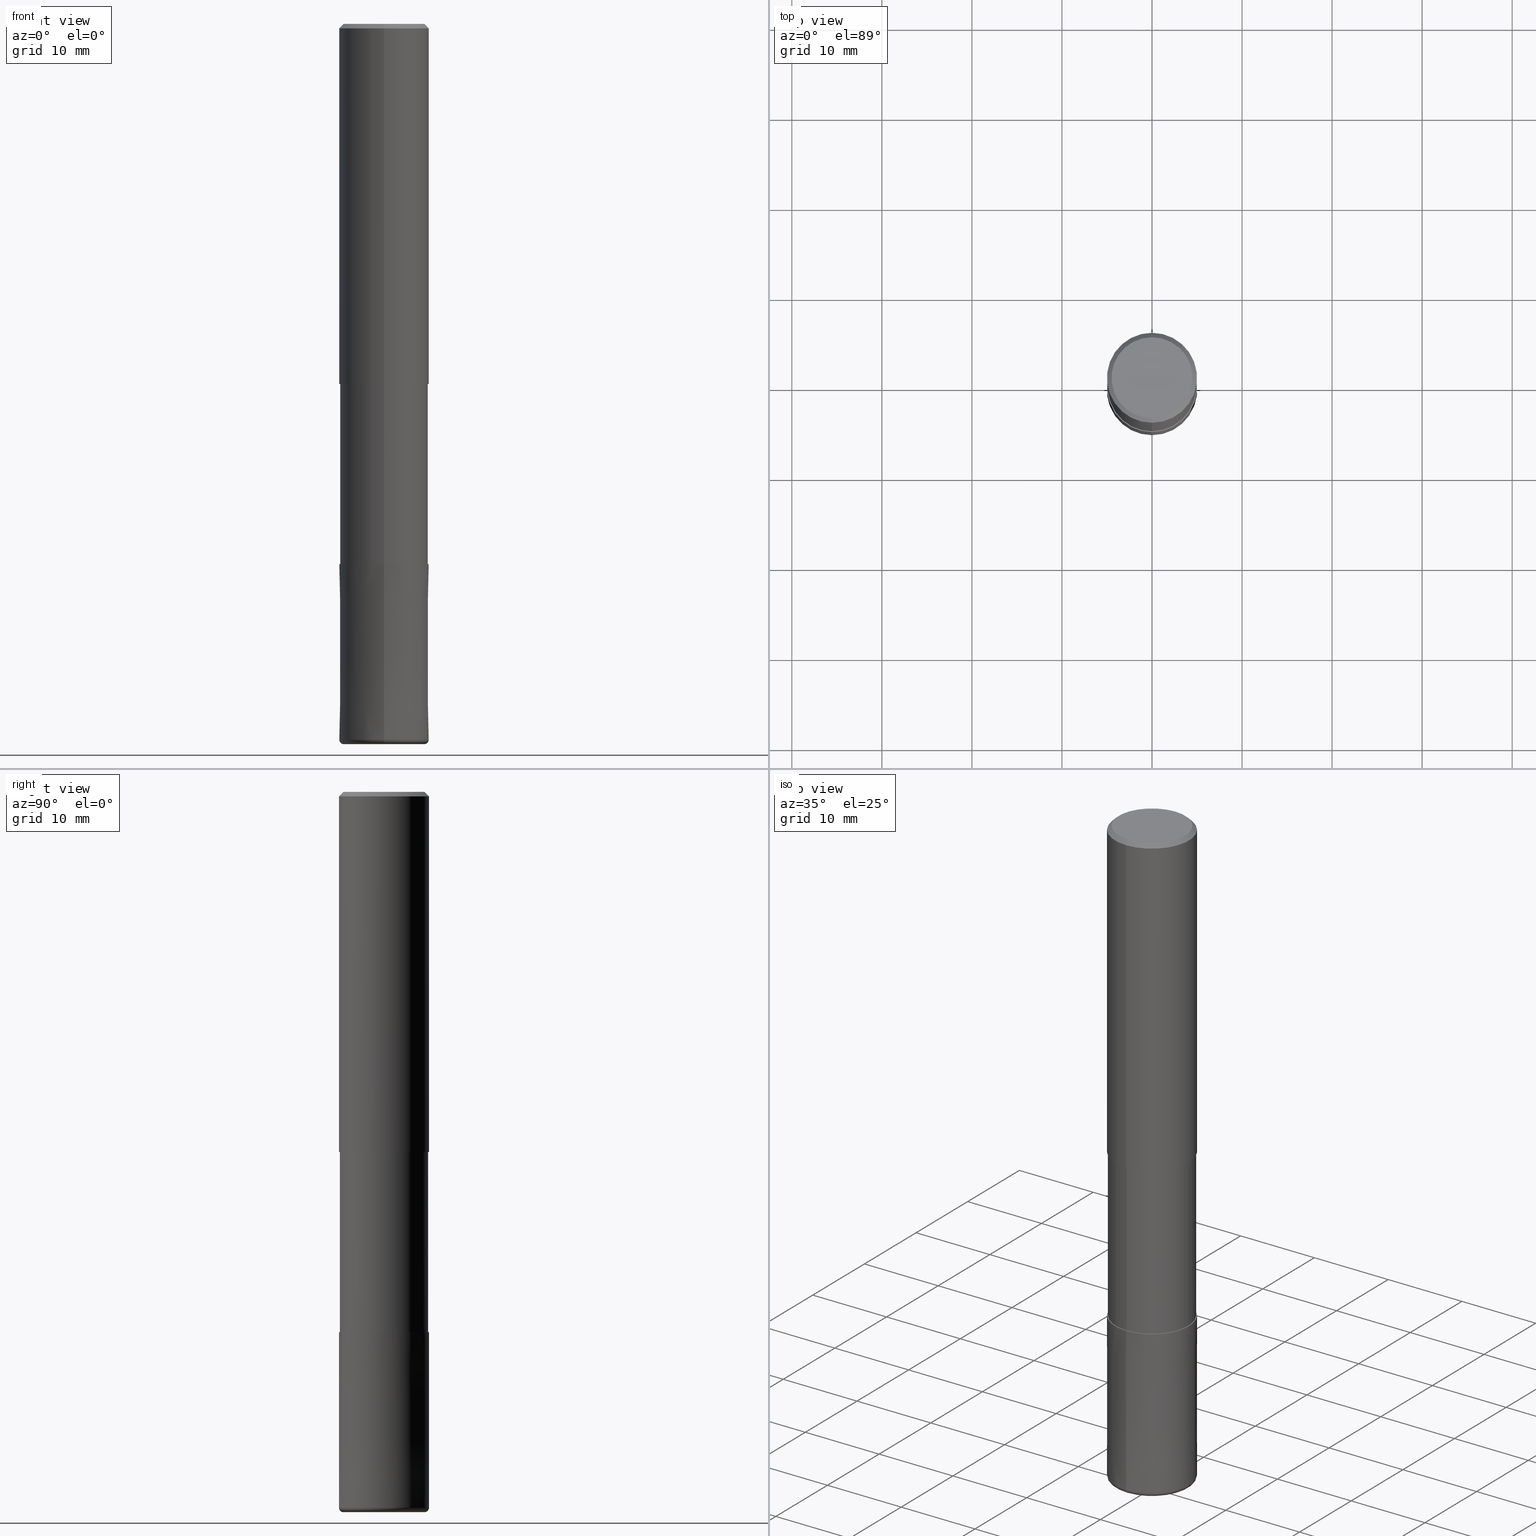
[diagram: canonical four-view strip — front | top / right | iso, engineering-drawing reading convention]
A machine part, canonical four-view strip (front | top / right | iso — engineering-drawing reading convention). The complete STEP part file that produces these views, byte-faithful:
ISO-10303-21;
HEADER;
FILE_DESCRIPTION(('no description'),'unknown implementation level');
FILE_NAME('CXLRS5100-05-40-Huellk.stp','  ',('CIMSOURCE GmbH'),('CADClick - KiM GmbH - www.kimweb.de'),'unknown preprocess','ACIS','unknown authorization');
FILE_SCHEMA(('automotive_design'));
ENDSEC;
DATA;
#1=MECHANICAL_DESIGN_GEOMETRIC_PRESENTATION_REPRESENTATION(' ',(#14,#15,#16,#17,#18,#19,#20,#21,#22,#23,#24,#25,#26,#27,#28,#29,#30,#31,#32,#33,#34,#35,#36,#37,#38,#39,#40,#41,#42,#43,#44,#45,#46,#47,#48,#49,#50,#51,#52,#53,#54,#55,#56,#57,#58,#59,#60,#61,#62,#63,#64,#65,#66,#67,#68,#69,#70,#71,#72,#73,#74,#75,#76,#77,#78,#79,#80,#81,#82,#83,#84,#85,#86,#87,#88,#89,#90,#91,#92,#93,#94,#95,#96,#97),#10);
#2=PRODUCT_DEFINITION_CONTEXT('',#98,'design');
#3=APPLICATION_PROTOCOL_DEFINITION('INTERNATIONAL STANDARD','automotive_design',1994,#98);
#4=PRODUCT_CATEGORY_RELATIONSHIP('NONE','NONE',#99,#100);
#5=SHAPE_DEFINITION_REPRESENTATION(#101,#102);
#6=PRODUCT_DEFINITION_CONTEXT('',#103,'design');
#7=APPLICATION_PROTOCOL_DEFINITION('INTERNATIONAL STANDARD','automotive_design',1994,#103);
#8=PRODUCT_CATEGORY_RELATIONSHIP('NONE','NONE',#104,#105);
#9=SHAPE_DEFINITION_REPRESENTATION(#106,#107);
#10= (GEOMETRIC_REPRESENTATION_CONTEXT(3)GLOBAL_UNCERTAINTY_ASSIGNED_CONTEXT((#110))GLOBAL_UNIT_ASSIGNED_CONTEXT((#112,#113,#114))REPRESENTATION_CONTEXT('NONE','WORKSPACE'));
#14=STYLED_ITEM('',(#116),#117);
#15=STYLED_ITEM('',(#118),#119);
#16=STYLED_ITEM('',(#120),#121);
#17=STYLED_ITEM('',(#122),#123);
#18=STYLED_ITEM('',(#124),#125);
#19=STYLED_ITEM('',(#126),#127);
#20=STYLED_ITEM('',(#128),#129);
#21=STYLED_ITEM('',(#130),#131);
#22=STYLED_ITEM('',(#132),#133);
#23=STYLED_ITEM('',(#134),#135);
#24=STYLED_ITEM('',(#136),#137);
#25=STYLED_ITEM('',(#138),#139);
#26=STYLED_ITEM('',(#140),#141);
#27=STYLED_ITEM('',(#142),#143);
#28=STYLED_ITEM('',(#144),#145);
#29=STYLED_ITEM('',(#146),#147);
#30=STYLED_ITEM('',(#148),#149);
#31=STYLED_ITEM('',(#150),#151);
#32=STYLED_ITEM('',(#152),#153);
#33=STYLED_ITEM('',(#154),#155);
#34=STYLED_ITEM('',(#156),#157);
#35=STYLED_ITEM('',(#158),#159);
#36=STYLED_ITEM('',(#160),#161);
#37=STYLED_ITEM('',(#162),#163);
#38=STYLED_ITEM('',(#164),#165);
#39=STYLED_ITEM('',(#166),#167);
#40=STYLED_ITEM('',(#168),#169);
#41=STYLED_ITEM('',(#170),#171);
#42=STYLED_ITEM('',(#172),#173);
#43=STYLED_ITEM('',(#174),#175);
#44=STYLED_ITEM('',(#176),#177);
#45=STYLED_ITEM('',(#178),#179);
#46=STYLED_ITEM('',(#180),#181);
#47=STYLED_ITEM('',(#182),#183);
#48=STYLED_ITEM('',(#184),#185);
#49=STYLED_ITEM('',(#186),#187);
#50=STYLED_ITEM('',(#188),#189);
#51=STYLED_ITEM('',(#190),#191);
#52=STYLED_ITEM('',(#192),#193);
#53=STYLED_ITEM('',(#194),#195);
#54=STYLED_ITEM('',(#196),#197);
#55=STYLED_ITEM('',(#198),#199);
#56=STYLED_ITEM('',(#200),#201);
#57=STYLED_ITEM('',(#202),#203);
#58=STYLED_ITEM('',(#204),#205);
#59=STYLED_ITEM('',(#206),#207);
#60=STYLED_ITEM('',(#208),#209);
#61=STYLED_ITEM('',(#210),#211);
#62=STYLED_ITEM('',(#212),#213);
#63=STYLED_ITEM('',(#214),#215);
#64=STYLED_ITEM('',(#216),#217);
#65=STYLED_ITEM('',(#218),#219);
#66=STYLED_ITEM('',(#220),#221);
#67=STYLED_ITEM('',(#222),#223);
#68=STYLED_ITEM('',(#224),#225);
#69=STYLED_ITEM('',(#226),#227);
#70=STYLED_ITEM('',(#228),#229);
#71=STYLED_ITEM('',(#230),#231);
#72=STYLED_ITEM('',(#232),#233);
#73=STYLED_ITEM('',(#234),#235);
#74=STYLED_ITEM('',(#236),#237);
#75=STYLED_ITEM('',(#238),#239);
#76=STYLED_ITEM('',(#240),#241);
#77=STYLED_ITEM('',(#242),#243);
#78=STYLED_ITEM('',(#244),#245);
#79=STYLED_ITEM('',(#246),#247);
#80=STYLED_ITEM('',(#248),#249);
#81=STYLED_ITEM('',(#250),#251);
#82=STYLED_ITEM('',(#252),#253);
#83=STYLED_ITEM('',(#254),#255);
#84=STYLED_ITEM('',(#256),#257);
#85=STYLED_ITEM('',(#258),#259);
#86=STYLED_ITEM('',(#260),#261);
#87=STYLED_ITEM('',(#262),#263);
#88=STYLED_ITEM('',(#264),#265);
#89=STYLED_ITEM('',(#266),#267);
#90=STYLED_ITEM('',(#268),#269);
#91=STYLED_ITEM('',(#270),#271);
#92=STYLED_ITEM('',(#272),#273);
#93=STYLED_ITEM('',(#274),#275);
#94=STYLED_ITEM('',(#276),#277);
#95=STYLED_ITEM('',(#278),#279);
#96=STYLED_ITEM('',(#280),#281);
#97=STYLED_ITEM('',(#282),#283);
#98=APPLICATION_CONTEXT(' ');
#99=PRODUCT_CATEGORY('part','NONE');
#100=PRODUCT_RELATED_PRODUCT_CATEGORY('detail',' ',(#284));
#101=PRODUCT_DEFINITION_SHAPE('NONE','NONE',#285);
#102=ADVANCED_BREP_SHAPE_REPRESENTATION('1',(#275,#286),#10);
#103=APPLICATION_CONTEXT(' ');
#104=PRODUCT_CATEGORY('part','NONE');
#105=PRODUCT_RELATED_PRODUCT_CATEGORY('detail',' ',(#287));
#106=PRODUCT_DEFINITION_SHAPE('NONE','NONE',#288);
#107=ADVANCED_BREP_SHAPE_REPRESENTATION('2',(#125,#289),#10);
#110=UNCERTAINTY_MEASURE_WITH_UNIT(LENGTH_MEASURE(1.0E-006),#112,'','');
#112= (CONVERSION_BASED_UNIT('MILLIMETRE',#292)LENGTH_UNIT()NAMED_UNIT(#295));
#113= (NAMED_UNIT(#297)PLANE_ANGLE_UNIT()SI_UNIT($,.RADIAN.));
#114= (NAMED_UNIT(#297)SOLID_ANGLE_UNIT()SI_UNIT($,.STERADIAN.));
#116=PRESENTATION_STYLE_ASSIGNMENT((#303));
#117=VERTEX_POINT('',#304);
#118=PRESENTATION_STYLE_ASSIGNMENT((#305));
#119=EDGE_CURVE('',#221,#199,#306,.T.);
#120=PRESENTATION_STYLE_ASSIGNMENT((#307));
#121=EDGE_CURVE('',#171,#179,#308,.T.);
#122=PRESENTATION_STYLE_ASSIGNMENT((#309));
#123=EDGE_CURVE('',#153,#157,#310,.T.);
#124=PRESENTATION_STYLE_ASSIGNMENT((#311));
#125=MANIFOLD_SOLID_BREP('2',#312);
#126=PRESENTATION_STYLE_ASSIGNMENT((#313));
#127=EDGE_CURVE('',#197,#147,#314,.T.);
#128=PRESENTATION_STYLE_ASSIGNMENT((#315));
#129=EDGE_CURVE('',#241,#161,#316,.T.);
#130=PRESENTATION_STYLE_ASSIGNMENT((#317));
#131=ADVANCED_FACE('',(#318),#319,.T.);
#132=PRESENTATION_STYLE_ASSIGNMENT((#320));
#133=VERTEX_POINT('',#321);
#134=PRESENTATION_STYLE_ASSIGNMENT((#322));
#135=EDGE_CURVE('',#253,#231,#323,.T.);
#136=PRESENTATION_STYLE_ASSIGNMENT((#324));
#137=VERTEX_POINT('',#325);
#138=PRESENTATION_STYLE_ASSIGNMENT((#326));
#139=VERTEX_POINT('',#327);
#140=PRESENTATION_STYLE_ASSIGNMENT((#328));
#141=EDGE_CURVE('',#161,#139,#329,.T.);
#142=PRESENTATION_STYLE_ASSIGNMENT((#330));
#143=ADVANCED_FACE('',(#331,#332),#333,.T.);
#144=PRESENTATION_STYLE_ASSIGNMENT((#334));
#145=ADVANCED_FACE('',(#335,#336),#337,.T.);
#146=PRESENTATION_STYLE_ASSIGNMENT((#338));
#147=VERTEX_POINT('',#339);
#148=PRESENTATION_STYLE_ASSIGNMENT((#340));
#149=EDGE_CURVE('',#133,#155,#341,.T.);
#150=PRESENTATION_STYLE_ASSIGNMENT((#342));
#151=EDGE_CURVE('',#139,#161,#343,.T.);
#152=PRESENTATION_STYLE_ASSIGNMENT((#344));
#153=VERTEX_POINT('',#345);
#154=PRESENTATION_STYLE_ASSIGNMENT((#346));
#155=VERTEX_POINT('',#347);
#156=PRESENTATION_STYLE_ASSIGNMENT((#348));
#157=VERTEX_POINT('',#349);
#158=PRESENTATION_STYLE_ASSIGNMENT((#350));
#159=ADVANCED_FACE('',(#351),#352,.F.);
#160=PRESENTATION_STYLE_ASSIGNMENT((#353));
#161=VERTEX_POINT('',#354);
#162=PRESENTATION_STYLE_ASSIGNMENT((#355));
#163=EDGE_CURVE('',#247,#261,#356,.T.);
#164=PRESENTATION_STYLE_ASSIGNMENT((#357));
#165=ADVANCED_FACE('',(#358),#359,.T.);
#166=PRESENTATION_STYLE_ASSIGNMENT((#360));
#167=EDGE_CURVE('',#197,#261,#361,.T.);
#168=PRESENTATION_STYLE_ASSIGNMENT((#362));
#169=ADVANCED_FACE('',(#363),#364,.T.);
#170=PRESENTATION_STYLE_ASSIGNMENT((#365));
#171=VERTEX_POINT('',#366);
#172=PRESENTATION_STYLE_ASSIGNMENT((#367));
#173=ADVANCED_FACE('',(#368,#369),#370,.T.);
#174=PRESENTATION_STYLE_ASSIGNMENT((#371));
#175=ADVANCED_FACE('',(#372),#373,.T.);
#176=PRESENTATION_STYLE_ASSIGNMENT((#374));
#177=EDGE_CURVE('',#241,#257,#375,.T.);
#178=PRESENTATION_STYLE_ASSIGNMENT((#376));
#179=VERTEX_POINT('',#377);
#180=PRESENTATION_STYLE_ASSIGNMENT((#378));
#181=VERTEX_POINT('',#379);
#182=PRESENTATION_STYLE_ASSIGNMENT((#380));
#183=VERTEX_POINT('',#381);
#184=PRESENTATION_STYLE_ASSIGNMENT((#382));
#185=EDGE_CURVE('',#155,#133,#383,.T.);
#186=PRESENTATION_STYLE_ASSIGNMENT((#384));
#187=EDGE_CURVE('',#183,#181,#385,.T.);
#188=PRESENTATION_STYLE_ASSIGNMENT((#386));
#189=EDGE_CURVE('',#137,#253,#387,.T.);
#190=PRESENTATION_STYLE_ASSIGNMENT((#388));
#191=ADVANCED_FACE('',(#389),#390,.T.);
#192=PRESENTATION_STYLE_ASSIGNMENT((#391));
#193=ADVANCED_FACE('',(#392),#393,.T.);
#194=PRESENTATION_STYLE_ASSIGNMENT((#394));
#195=EDGE_CURVE('',#231,#223,#395,.T.);
#196=PRESENTATION_STYLE_ASSIGNMENT((#396));
#197=VERTEX_POINT('',#397);
#198=PRESENTATION_STYLE_ASSIGNMENT((#398));
#199=VERTEX_POINT('',#399);
#200=PRESENTATION_STYLE_ASSIGNMENT((#400));
#201=EDGE_CURVE('',#137,#199,#401,.T.);
#202=PRESENTATION_STYLE_ASSIGNMENT((#402));
#203=ADVANCED_FACE('',(#403),#404,.F.);
#204=PRESENTATION_STYLE_ASSIGNMENT((#405));
#205=EDGE_CURVE('',#223,#137,#406,.T.);
#206=PRESENTATION_STYLE_ASSIGNMENT((#407));
#207=ADVANCED_FACE('',(#408),#409,.T.);
#208=PRESENTATION_STYLE_ASSIGNMENT((#410));
#209=ADVANCED_FACE('',(#411),#412,.T.);
#210=PRESENTATION_STYLE_ASSIGNMENT((#413));
#211=EDGE_CURVE('',#117,#273,#414,.T.);
#212=PRESENTATION_STYLE_ASSIGNMENT((#415));
#213=EDGE_CURVE('',#257,#241,#416,.T.);
#214=PRESENTATION_STYLE_ASSIGNMENT((#417));
#215=ADVANCED_FACE('',(#418),#419,.T.);
#216=PRESENTATION_STYLE_ASSIGNMENT((#420));
#217=EDGE_CURVE('',#221,#223,#421,.T.);
#218=PRESENTATION_STYLE_ASSIGNMENT((#422));
#219=EDGE_CURVE('',#273,#117,#423,.T.);
#220=PRESENTATION_STYLE_ASSIGNMENT((#424));
#221=VERTEX_POINT('',#425);
#222=PRESENTATION_STYLE_ASSIGNMENT((#426));
#223=VERTEX_POINT('',#427);
#224=PRESENTATION_STYLE_ASSIGNMENT((#428));
#225=EDGE_CURVE('',#261,#247,#429,.T.);
#226=PRESENTATION_STYLE_ASSIGNMENT((#430));
#227=EDGE_CURVE('',#153,#273,#431,.T.);
#228=PRESENTATION_STYLE_ASSIGNMENT((#432));
#229=ADVANCED_FACE('',(#433,#434),#435,.T.);
#230=PRESENTATION_STYLE_ASSIGNMENT((#436));
#231=VERTEX_POINT('',#437);
#232=PRESENTATION_STYLE_ASSIGNMENT((#438));
#233=ADVANCED_FACE('',(#439),#440,.T.);
#234=PRESENTATION_STYLE_ASSIGNMENT((#441));
#235=EDGE_CURVE('',#247,#147,#442,.T.);
#236=PRESENTATION_STYLE_ASSIGNMENT((#443));
#237=EDGE_CURVE('',#183,#155,#444,.T.);
#238=PRESENTATION_STYLE_ASSIGNMENT((#445));
#239=EDGE_CURVE('',#181,#183,#446,.T.);
#240=PRESENTATION_STYLE_ASSIGNMENT((#447));
#241=VERTEX_POINT('',#448);
#242=PRESENTATION_STYLE_ASSIGNMENT((#449));
#243=EDGE_CURVE('',#139,#257,#450,.T.);
#244=PRESENTATION_STYLE_ASSIGNMENT((#451));
#245=EDGE_CURVE('',#199,#221,#452,.T.);
#246=PRESENTATION_STYLE_ASSIGNMENT((#453));
#247=VERTEX_POINT('',#454);
#248=PRESENTATION_STYLE_ASSIGNMENT((#455));
#249=EDGE_CURVE('',#117,#157,#456,.T.);
#250=PRESENTATION_STYLE_ASSIGNMENT((#457));
#251=ADVANCED_FACE('',(#458),#459,.T.);
#252=PRESENTATION_STYLE_ASSIGNMENT((#460));
#253=VERTEX_POINT('',#461);
#254=PRESENTATION_STYLE_ASSIGNMENT((#462));
#255=EDGE_CURVE('',#179,#171,#463,.T.);
#256=PRESENTATION_STYLE_ASSIGNMENT((#464));
#257=VERTEX_POINT('',#465);
#258=PRESENTATION_STYLE_ASSIGNMENT((#466));
#259=ADVANCED_FACE('',(#467),#468,.T.);
#260=PRESENTATION_STYLE_ASSIGNMENT((#469));
#261=VERTEX_POINT('',#470);
#262=PRESENTATION_STYLE_ASSIGNMENT((#471));
#263=EDGE_CURVE('',#157,#153,#472,.T.);
#264=PRESENTATION_STYLE_ASSIGNMENT((#473));
#265=EDGE_CURVE('',#231,#253,#474,.T.);
#266=PRESENTATION_STYLE_ASSIGNMENT((#475));
#267=EDGE_CURVE('',#179,#139,#476,.T.);
#268=PRESENTATION_STYLE_ASSIGNMENT((#477));
#269=EDGE_CURVE('',#137,#223,#478,.T.);
#270=PRESENTATION_STYLE_ASSIGNMENT((#479));
#271=EDGE_CURVE('',#161,#171,#480,.T.);
#272=PRESENTATION_STYLE_ASSIGNMENT((#481));
#273=VERTEX_POINT('',#482);
#274=PRESENTATION_STYLE_ASSIGNMENT((#483));
#275=MANIFOLD_SOLID_BREP('1',#484);
#276=PRESENTATION_STYLE_ASSIGNMENT((#485));
#277=EDGE_CURVE('',#133,#181,#486,.T.);
#278=PRESENTATION_STYLE_ASSIGNMENT((#487));
#279=ADVANCED_FACE('',(#488),#489,.T.);
#280=PRESENTATION_STYLE_ASSIGNMENT((#490));
#281=ADVANCED_FACE('',(#491),#492,.T.);
#282=PRESENTATION_STYLE_ASSIGNMENT((#493));
#283=EDGE_CURVE('',#147,#197,#494,.T.);
#284=PRODUCT('1','1','PART-1-DESC',(#495));
#285=PRODUCT_DEFINITION('NONE','NONE',#496,#2);
#286=AXIS2_PLACEMENT_3D('',#497,#498,#499);
#287=PRODUCT('2','2','PART-2-DESC',(#500));
#288=PRODUCT_DEFINITION('NONE','NONE',#501,#6);
#289=AXIS2_PLACEMENT_3D('',#502,#503,#504);
#292=LENGTH_MEASURE_WITH_UNIT(LENGTH_MEASURE(1.0),#505);
#295=DIMENSIONAL_EXPONENTS(1.0,0.0,0.0,0.0,0.0,0.0,0.0);
#297=DIMENSIONAL_EXPONENTS(0.0,0.0,0.0,0.0,0.0,0.0,0.0);
#303=POINT_STYLE(' ',#506,POSITIVE_LENGTH_MEASURE(1.0E-006),#507);
#304=CARTESIAN_POINT('',(0.0,4.89995,-40.0));
#305=CURVE_STYLE('',#508,POSITIVE_LENGTH_MEASURE(1.0E-006),#509);
#306=CIRCLE('',#510,4.9999);
#307=CURVE_STYLE('',#511,POSITIVE_LENGTH_MEASURE(1.0E-006),#512);
#308=CIRCLE('',#513,5.0);
#309=CURVE_STYLE('',#514,POSITIVE_LENGTH_MEASURE(1.0E-006),#515);
#310=CIRCLE('',#516,4.89995);
#311=SURFACE_STYLE_USAGE(.BOTH.,#517);
#312=CLOSED_SHELL('',(#159,#165,#279,#229,#193,#281,#145,#203));
#313=CURVE_STYLE('',#518,POSITIVE_LENGTH_MEASURE(1.0E-006),#519);
#314=CIRCLE('',#520,2.25);
#315=CURVE_STYLE('',#521,POSITIVE_LENGTH_MEASURE(1.0E-006),#522);
#316=LINE('',#523,#524);
#317=SURFACE_STYLE_USAGE(.BOTH.,#525);
#318=FACE_OUTER_BOUND('',#526,.T.);
#319=CONICAL_SURFACE('',#527,4.75,0.785398163397448);
#320=POINT_STYLE(' ',#528,POSITIVE_LENGTH_MEASURE(1.0E-006),#529);
#321=CARTESIAN_POINT('',(0.0,2.25,-60.0));
#322=CURVE_STYLE('',#530,POSITIVE_LENGTH_MEASURE(1.0E-006),#531);
#323=CIRCLE('',#532,4.5);
#324=POINT_STYLE(' ',#533,POSITIVE_LENGTH_MEASURE(1.0E-006),#534);
#325=CARTESIAN_POINT('',(6.12303176911189E-016,-5.0,-79.5));
#326=POINT_STYLE(' ',#535,POSITIVE_LENGTH_MEASURE(1.0E-006),#536);
#327=CARTESIAN_POINT('',(6.12303176911189E-016,-5.0,-0.5));
#328=CURVE_STYLE('',#537,POSITIVE_LENGTH_MEASURE(1.0E-006),#538);
#329=CIRCLE('',#539,5.0);
#330=SURFACE_STYLE_USAGE(.BOTH.,#540);
#331=FACE_OUTER_BOUND('',#541,.T.);
#332=FACE_BOUND('',#542,.T.);
#333=PLANE('',#543);
#334=SURFACE_STYLE_USAGE(.BOTH.,#544);
#335=FACE_BOUND('',#545,.T.);
#336=FACE_OUTER_BOUND('',#546,.T.);
#337=PLANE('',#547);
#338=POINT_STYLE(' ',#548,POSITIVE_LENGTH_MEASURE(1.0E-006),#549);
#339=CARTESIAN_POINT('',(0.0,2.25,-79.8));
#340=CURVE_STYLE('',#550,POSITIVE_LENGTH_MEASURE(1.0E-006),#551);
#341=CIRCLE('',#552,2.25);
#342=CURVE_STYLE('',#553,POSITIVE_LENGTH_MEASURE(1.0E-006),#554);
#343=CIRCLE('',#555,5.0);
#344=POINT_STYLE(' ',#556,POSITIVE_LENGTH_MEASURE(1.0E-006),#557);
#345=CARTESIAN_POINT('',(6.00050990341196E-016,-4.89995,-60.0));
#346=POINT_STYLE(' ',#558,POSITIVE_LENGTH_MEASURE(1.0E-006),#559);
#347=CARTESIAN_POINT('',(2.75536429610035E-016,-2.25,-60.0));
#348=POINT_STYLE(' ',#560,POSITIVE_LENGTH_MEASURE(1.0E-006),#561);
#349=CARTESIAN_POINT('',(0.0,4.89995,-60.0));
#350=SURFACE_STYLE_USAGE(.BOTH.,#562);
#351=FACE_OUTER_BOUND('',#563,.T.);
#352=CYLINDRICAL_SURFACE('',#564,2.25);
#353=POINT_STYLE(' ',#565,POSITIVE_LENGTH_MEASURE(1.0E-006),#566);
#354=CARTESIAN_POINT('',(0.0,5.0,-0.5));
#355=CURVE_STYLE('',#567,POSITIVE_LENGTH_MEASURE(1.0E-006),#568);
#356=CIRCLE('',#569,2.25);
#357=SURFACE_STYLE_USAGE(.BOTH.,#570);
#358=FACE_OUTER_BOUND('',#571,.T.);
#359=TOROIDAL_SURFACE('',#572,4.49999999999999,0.500000000000007);
#360=CURVE_STYLE('',#573,POSITIVE_LENGTH_MEASURE(1.0E-006),#574);
#361=LINE('',#575,#576);
#362=SURFACE_STYLE_USAGE(.BOTH.,#577);
#363=FACE_OUTER_BOUND('',#578,.T.);
#364=CYLINDRICAL_SURFACE('',#579,4.89995);
#365=POINT_STYLE(' ',#580,POSITIVE_LENGTH_MEASURE(1.0E-006),#581);
#366=CARTESIAN_POINT('',(0.0,5.0,-40.0));
#367=SURFACE_STYLE_USAGE(.BOTH.,#582);
#368=FACE_BOUND('',#583,.T.);
#369=FACE_OUTER_BOUND('',#584,.T.);
#370=PLANE('',#585);
#371=SURFACE_STYLE_USAGE(.BOTH.,#586);
#372=FACE_OUTER_BOUND('',#587,.T.);
#373=CYLINDRICAL_SURFACE('',#588,2.25);
#374=CURVE_STYLE('',#589,POSITIVE_LENGTH_MEASURE(1.0E-006),#590);
#375=CIRCLE('',#591,4.5);
#376=POINT_STYLE(' ',#592,POSITIVE_LENGTH_MEASURE(1.0E-006),#593);
#377=CARTESIAN_POINT('',(6.12303176911189E-016,-5.0,-40.0));
#378=POINT_STYLE(' ',#594,POSITIVE_LENGTH_MEASURE(1.0E-006),#595);
#379=CARTESIAN_POINT('',(0.0,2.25,-80.0));
#380=POINT_STYLE(' ',#596,POSITIVE_LENGTH_MEASURE(1.0E-006),#597);
#381=CARTESIAN_POINT('',(2.75536429610035E-016,-2.25,-80.0));
#382=CURVE_STYLE('',#598,POSITIVE_LENGTH_MEASURE(1.0E-006),#599);
#383=CIRCLE('',#600,2.25);
#384=CURVE_STYLE('',#601,POSITIVE_LENGTH_MEASURE(1.0E-006),#602);
#385=CIRCLE('',#603,2.25);
#386=CURVE_STYLE('',#604,POSITIVE_LENGTH_MEASURE(1.0E-006),#605);
#387=CIRCLE('',#606,0.500000000000007);
#388=SURFACE_STYLE_USAGE(.BOTH.,#607);
#389=FACE_OUTER_BOUND('',#608,.T.);
#390=PLANE('',#609);
#391=SURFACE_STYLE_USAGE(.BOTH.,#610);
#392=FACE_OUTER_BOUND('',#611,.T.);
#393=CONICAL_SURFACE('',#612,4.99995,5.12820512814822E-006);
#394=CURVE_STYLE('',#613,POSITIVE_LENGTH_MEASURE(1.0E-006),#614);
#395=CIRCLE('',#615,0.500000000000007);
#396=POINT_STYLE(' ',#616,POSITIVE_LENGTH_MEASURE(1.0E-006),#617);
#397=CARTESIAN_POINT('',(2.75536429610035E-016,-2.25,-79.8));
#398=POINT_STYLE(' ',#618,POSITIVE_LENGTH_MEASURE(1.0E-006),#619);
#399=CARTESIAN_POINT('',(6.1229093084765E-016,-4.9999,-60.0));
#400=CURVE_STYLE('',#620,POSITIVE_LENGTH_MEASURE(1.0E-006),#621);
#401=LINE('',#622,#623);
#402=SURFACE_STYLE_USAGE(.BOTH.,#624);
#403=FACE_OUTER_BOUND('',#625,.T.);
#404=CYLINDRICAL_SURFACE('',#626,2.25);
#405=CURVE_STYLE('',#627,POSITIVE_LENGTH_MEASURE(1.0E-006),#628);
#406=CIRCLE('',#629,5.0);
#407=SURFACE_STYLE_USAGE(.BOTH.,#630);
#408=FACE_OUTER_BOUND('',#631,.T.);
#409=PLANE('',#632);
#410=SURFACE_STYLE_USAGE(.BOTH.,#633);
#411=FACE_OUTER_BOUND('',#634,.T.);
#412=CYLINDRICAL_SURFACE('',#635,2.25);
#413=CURVE_STYLE('',#636,POSITIVE_LENGTH_MEASURE(1.0E-006),#637);
#414=CIRCLE('',#638,4.89995);
#415=CURVE_STYLE('',#639,POSITIVE_LENGTH_MEASURE(1.0E-006),#640);
#416=CIRCLE('',#641,4.5);
#417=SURFACE_STYLE_USAGE(.BOTH.,#642);
#418=FACE_OUTER_BOUND('',#643,.T.);
#419=CONICAL_SURFACE('',#644,4.75,0.785398163397448);
#420=CURVE_STYLE('',#645,POSITIVE_LENGTH_MEASURE(1.0E-006),#646);
#421=LINE('',#647,#648);
#422=CURVE_STYLE('',#649,POSITIVE_LENGTH_MEASURE(1.0E-006),#650);
#423=CIRCLE('',#651,4.89995);
#424=POINT_STYLE(' ',#652,POSITIVE_LENGTH_MEASURE(1.0E-006),#653);
#425=CARTESIAN_POINT('',(0.0,4.9999,-60.0));
#426=POINT_STYLE(' ',#654,POSITIVE_LENGTH_MEASURE(1.0E-006),#655);
#427=CARTESIAN_POINT('',(0.0,5.0,-79.5));
#428=CURVE_STYLE('',#656,POSITIVE_LENGTH_MEASURE(1.0E-006),#657);
#429=CIRCLE('',#658,2.25);
#430=CURVE_STYLE('',#659,POSITIVE_LENGTH_MEASURE(1.0E-006),#660);
#431=LINE('',#661,#662);
#432=SURFACE_STYLE_USAGE(.BOTH.,#663);
#433=FACE_OUTER_BOUND('',#664,.T.);
#434=FACE_BOUND('',#665,.T.);
#435=PLANE('',#666);
#436=POINT_STYLE(' ',#667,POSITIVE_LENGTH_MEASURE(1.0E-006),#668);
#437=CARTESIAN_POINT('',(0.0,4.5,-80.0));
#438=SURFACE_STYLE_USAGE(.BOTH.,#669);
#439=FACE_OUTER_BOUND('',#670,.T.);
#440=CYLINDRICAL_SURFACE('',#671,5.0);
#441=CURVE_STYLE('',#672,POSITIVE_LENGTH_MEASURE(1.0E-006),#673);
#442=LINE('',#674,#675);
#443=CURVE_STYLE('',#676,POSITIVE_LENGTH_MEASURE(1.0E-006),#677);
#444=LINE('',#678,#679);
#445=CURVE_STYLE('',#680,POSITIVE_LENGTH_MEASURE(1.0E-006),#681);
#446=CIRCLE('',#682,2.25);
#447=POINT_STYLE(' ',#683,POSITIVE_LENGTH_MEASURE(1.0E-006),#684);
#448=CARTESIAN_POINT('',(0.0,4.5,0.0));
#449=CURVE_STYLE('',#685,POSITIVE_LENGTH_MEASURE(1.0E-006),#686);
#450=LINE('',#687,#688);
#451=CURVE_STYLE('',#689,POSITIVE_LENGTH_MEASURE(1.0E-006),#690);
#452=CIRCLE('',#691,4.9999);
#453=POINT_STYLE(' ',#692,POSITIVE_LENGTH_MEASURE(1.0E-006),#693);
#454=CARTESIAN_POINT('',(0.0,2.25,-60.0));
#455=CURVE_STYLE('',#694,POSITIVE_LENGTH_MEASURE(1.0E-006),#695);
#456=LINE('',#696,#697);
#457=SURFACE_STYLE_USAGE(.BOTH.,#698);
#458=FACE_OUTER_BOUND('',#699,.T.);
#459=CYLINDRICAL_SURFACE('',#700,5.0);
#460=POINT_STYLE(' ',#701,POSITIVE_LENGTH_MEASURE(1.0E-006),#702);
#461=CARTESIAN_POINT('',(5.5107285922007E-016,-4.5,-80.0));
#462=CURVE_STYLE('',#703,POSITIVE_LENGTH_MEASURE(1.0E-006),#704);
#463=CIRCLE('',#705,5.0);
#464=POINT_STYLE(' ',#706,POSITIVE_LENGTH_MEASURE(1.0E-006),#707);
#465=CARTESIAN_POINT('',(5.5107285922007E-016,-4.5,0.0));
#466=SURFACE_STYLE_USAGE(.BOTH.,#708);
#467=FACE_OUTER_BOUND('',#709,.T.);
#468=CYLINDRICAL_SURFACE('',#710,4.89995);
#469=POINT_STYLE(' ',#711,POSITIVE_LENGTH_MEASURE(1.0E-006),#712);
#470=CARTESIAN_POINT('',(2.75536429610035E-016,-2.25,-60.0));
#471=CURVE_STYLE('',#713,POSITIVE_LENGTH_MEASURE(1.0E-006),#714);
#472=CIRCLE('',#715,4.89995);
#473=CURVE_STYLE('',#716,POSITIVE_LENGTH_MEASURE(1.0E-006),#717);
#474=CIRCLE('',#718,4.5);
#475=CURVE_STYLE('',#719,POSITIVE_LENGTH_MEASURE(1.0E-006),#720);
#476=LINE('',#721,#722);
#477=CURVE_STYLE('',#723,POSITIVE_LENGTH_MEASURE(1.0E-006),#724);
#478=CIRCLE('',#725,5.0);
#479=CURVE_STYLE('',#726,POSITIVE_LENGTH_MEASURE(1.0E-006),#727);
#480=LINE('',#728,#729);
#481=POINT_STYLE(' ',#730,POSITIVE_LENGTH_MEASURE(1.0E-006),#731);
#482=CARTESIAN_POINT('',(6.00050990341196E-016,-4.89995,-40.0));
#483=SURFACE_STYLE_USAGE(.BOTH.,#732);
#484=CLOSED_SHELL('',(#175,#169,#233,#131,#143,#191,#215,#251,#259,#173,#209,#207));
#485=CURVE_STYLE('',#733,POSITIVE_LENGTH_MEASURE(1.0E-006),#734);
#486=LINE('',#735,#736);
#487=SURFACE_STYLE_USAGE(.BOTH.,#737);
#488=FACE_OUTER_BOUND('',#738,.T.);
#489=CONICAL_SURFACE('',#739,4.99995,5.12820512814822E-006);
#490=SURFACE_STYLE_USAGE(.BOTH.,#740);
#491=FACE_OUTER_BOUND('',#741,.T.);
#492=TOROIDAL_SURFACE('',#742,4.49999999999999,0.500000000000007);
#493=CURVE_STYLE('',#743,POSITIVE_LENGTH_MEASURE(1.0E-006),#744);
#494=CIRCLE('',#745,2.25);
#495=PRODUCT_CONTEXT('',#98,'mechanical');
#496=PRODUCT_DEFINITION_FORMATION_WITH_SPECIFIED_SOURCE(' ','NONE',#284,.NOT_KNOWN.);
#497=CARTESIAN_POINT('',(0.0,0.0,0.0));
#498=DIRECTION('',(0.0,0.0,1.0));
#499=DIRECTION('',(1.0,0.0,0.0));
#500=PRODUCT_CONTEXT('',#103,'mechanical');
#501=PRODUCT_DEFINITION_FORMATION_WITH_SPECIFIED_SOURCE(' ','NONE',#287,.NOT_KNOWN.);
#502=CARTESIAN_POINT('',(0.0,0.0,0.0));
#503=DIRECTION('',(0.0,0.0,1.0));
#504=DIRECTION('',(1.0,0.0,0.0));
#505= (NAMED_UNIT(#295)LENGTH_UNIT()SI_UNIT(.MILLI.,.METRE.));
#506=PRE_DEFINED_MARKER('');
#507=COLOUR_RGB('',0.498039215803146,0.498039215803146,0.498039215803146);
#508=DRAUGHTING_PRE_DEFINED_CURVE_FONT('continuous');
#509=COLOUR_RGB('',0.800000011920929,0.800000011920929,0.800000011920929);
#510=AXIS2_PLACEMENT_3D('',#747,#748,#749);
#511=DRAUGHTING_PRE_DEFINED_CURVE_FONT('continuous');
#512=COLOUR_RGB('',0.498039215803146,0.498039215803146,0.498039215803146);
#513=AXIS2_PLACEMENT_3D('',#750,#751,#752);
#514=DRAUGHTING_PRE_DEFINED_CURVE_FONT('continuous');
#515=COLOUR_RGB('',0.498039215803146,0.498039215803146,0.498039215803146);
#516=AXIS2_PLACEMENT_3D('',#753,#754,#755);
#517=SURFACE_SIDE_STYLE('',(#756));
#518=DRAUGHTING_PRE_DEFINED_CURVE_FONT('continuous');
#519=COLOUR_RGB('',0.498039215803146,0.498039215803146,0.498039215803146);
#520=AXIS2_PLACEMENT_3D('',#757,#758,#759);
#521=DRAUGHTING_PRE_DEFINED_CURVE_FONT('continuous');
#522=COLOUR_RGB('',0.498039215803146,0.498039215803146,0.498039215803146);
#523=CARTESIAN_POINT('',(-5.81688018065629E-016,4.75,-0.25));
#524=VECTOR('',#760,1.0);
#525=SURFACE_SIDE_STYLE('',(#761));
#526=EDGE_LOOP('',(#762,#763,#764,#765));
#527=AXIS2_PLACEMENT_3D('',#766,#767,#768);
#528=PRE_DEFINED_MARKER('');
#529=COLOUR_RGB('',0.800000011920929,0.800000011920929,0.800000011920929);
#530=DRAUGHTING_PRE_DEFINED_CURVE_FONT('continuous');
#531=COLOUR_RGB('',0.800000011920929,0.800000011920929,0.800000011920929);
#532=AXIS2_PLACEMENT_3D('',#769,#770,#771);
#533=PRE_DEFINED_MARKER('');
#534=COLOUR_RGB('',0.800000011920929,0.800000011920929,0.800000011920929);
#535=PRE_DEFINED_MARKER('');
#536=COLOUR_RGB('',0.498039215803146,0.498039215803146,0.498039215803146);
#537=DRAUGHTING_PRE_DEFINED_CURVE_FONT('continuous');
#538=COLOUR_RGB('',0.498039215803146,0.498039215803146,0.498039215803146);
#539=AXIS2_PLACEMENT_3D('',#772,#773,#774);
#540=SURFACE_SIDE_STYLE('',(#775));
#541=EDGE_LOOP('',(#776,#777));
#542=EDGE_LOOP('',(#778,#779));
#543=AXIS2_PLACEMENT_3D('',#780,#781,#782);
#544=SURFACE_SIDE_STYLE('',(#783));
#545=EDGE_LOOP('',(#784,#785));
#546=EDGE_LOOP('',(#786,#787));
#547=AXIS2_PLACEMENT_3D('',#788,#789,#790);
#548=PRE_DEFINED_MARKER('');
#549=COLOUR_RGB('',0.498039215803146,0.498039215803146,0.498039215803146);
#550=DRAUGHTING_PRE_DEFINED_CURVE_FONT('continuous');
#551=COLOUR_RGB('',0.800000011920929,0.800000011920929,0.800000011920929);
#552=AXIS2_PLACEMENT_3D('',#791,#792,#793);
#553=DRAUGHTING_PRE_DEFINED_CURVE_FONT('continuous');
#554=COLOUR_RGB('',0.498039215803146,0.498039215803146,0.498039215803146);
#555=AXIS2_PLACEMENT_3D('',#794,#795,#796);
#556=PRE_DEFINED_MARKER('');
#557=COLOUR_RGB('',0.498039215803146,0.498039215803146,0.498039215803146);
#558=PRE_DEFINED_MARKER('');
#559=COLOUR_RGB('',0.800000011920929,0.800000011920929,0.800000011920929);
#560=PRE_DEFINED_MARKER('');
#561=COLOUR_RGB('',0.498039215803146,0.498039215803146,0.498039215803146);
#562=SURFACE_SIDE_STYLE('',(#797));
#563=EDGE_LOOP('',(#798,#799,#800,#801));
#564=AXIS2_PLACEMENT_3D('',#802,#803,#804);
#565=PRE_DEFINED_MARKER('');
#566=COLOUR_RGB('',0.498039215803146,0.498039215803146,0.498039215803146);
#567=DRAUGHTING_PRE_DEFINED_CURVE_FONT('continuous');
#568=COLOUR_RGB('',0.498039215803146,0.498039215803146,0.498039215803146);
#569=AXIS2_PLACEMENT_3D('',#805,#806,#807);
#570=SURFACE_SIDE_STYLE('',(#808));
#571=EDGE_LOOP('',(#809,#810,#811,#812));
#572=AXIS2_PLACEMENT_3D('',#813,#814,#815);
#573=DRAUGHTING_PRE_DEFINED_CURVE_FONT('continuous');
#574=COLOUR_RGB('',0.498039215803146,0.498039215803146,0.498039215803146);
#575=CARTESIAN_POINT('',(2.75536429610035E-016,-2.25,-69.9));
#576=VECTOR('',#816,1.0);
#577=SURFACE_SIDE_STYLE('',(#817));
#578=EDGE_LOOP('',(#818,#819,#820,#821));
#579=AXIS2_PLACEMENT_3D('',#822,#823,#824);
#580=PRE_DEFINED_MARKER('');
#581=COLOUR_RGB('',0.498039215803146,0.498039215803146,0.498039215803146);
#582=SURFACE_SIDE_STYLE('',(#825));
#583=EDGE_LOOP('',(#826,#827));
#584=EDGE_LOOP('',(#828,#829));
#585=AXIS2_PLACEMENT_3D('',#830,#831,#832);
#586=SURFACE_SIDE_STYLE('',(#833));
#587=EDGE_LOOP('',(#834,#835,#836,#837));
#588=AXIS2_PLACEMENT_3D('',#838,#839,#840);
#589=DRAUGHTING_PRE_DEFINED_CURVE_FONT('continuous');
#590=COLOUR_RGB('',0.498039215803146,0.498039215803146,0.498039215803146);
#591=AXIS2_PLACEMENT_3D('',#841,#842,#843);
#592=PRE_DEFINED_MARKER('');
#593=COLOUR_RGB('',0.498039215803146,0.498039215803146,0.498039215803146);
#594=PRE_DEFINED_MARKER('');
#595=COLOUR_RGB('',0.800000011920929,0.800000011920929,0.800000011920929);
#596=PRE_DEFINED_MARKER('');
#597=COLOUR_RGB('',0.800000011920929,0.800000011920929,0.800000011920929);
#598=DRAUGHTING_PRE_DEFINED_CURVE_FONT('continuous');
#599=COLOUR_RGB('',0.800000011920929,0.800000011920929,0.800000011920929);
#600=AXIS2_PLACEMENT_3D('',#844,#845,#846);
#601=DRAUGHTING_PRE_DEFINED_CURVE_FONT('continuous');
#602=COLOUR_RGB('',0.800000011920929,0.800000011920929,0.800000011920929);
#603=AXIS2_PLACEMENT_3D('',#847,#848,#849);
#604=DRAUGHTING_PRE_DEFINED_CURVE_FONT('continuous');
#605=COLOUR_RGB('',0.800000011920929,0.800000011920929,0.800000011920929);
#606=AXIS2_PLACEMENT_3D('',#850,#851,#852);
#607=SURFACE_SIDE_STYLE('',(#853));
#608=EDGE_LOOP('',(#854,#855));
#609=AXIS2_PLACEMENT_3D('',#856,#857,#858);
#610=SURFACE_SIDE_STYLE('',(#859));
#611=EDGE_LOOP('',(#860,#861,#862,#863));
#612=AXIS2_PLACEMENT_3D('',#864,#865,#866);
#613=DRAUGHTING_PRE_DEFINED_CURVE_FONT('continuous');
#614=COLOUR_RGB('',0.800000011920929,0.800000011920929,0.800000011920929);
#615=AXIS2_PLACEMENT_3D('',#867,#868,#869);
#616=PRE_DEFINED_MARKER('');
#617=COLOUR_RGB('',0.498039215803146,0.498039215803146,0.498039215803146);
#618=PRE_DEFINED_MARKER('');
#619=COLOUR_RGB('',0.800000011920929,0.800000011920929,0.800000011920929);
#620=DRAUGHTING_PRE_DEFINED_CURVE_FONT('continuous');
#621=COLOUR_RGB('',0.800000011920929,0.800000011920929,0.800000011920929);
#622=CARTESIAN_POINT('',(6.12297053879419E-016,-4.99995,-69.75));
#623=VECTOR('',#870,1.0);
#624=SURFACE_SIDE_STYLE('',(#871));
#625=EDGE_LOOP('',(#872,#873,#874,#875));
#626=AXIS2_PLACEMENT_3D('',#876,#877,#878);
#627=DRAUGHTING_PRE_DEFINED_CURVE_FONT('continuous');
#628=COLOUR_RGB('',0.800000011920929,0.800000011920929,0.800000011920929);
#629=AXIS2_PLACEMENT_3D('',#879,#880,#881);
#630=SURFACE_SIDE_STYLE('',(#882));
#631=EDGE_LOOP('',(#883,#884));
#632=AXIS2_PLACEMENT_3D('',#885,#886,#887);
#633=SURFACE_SIDE_STYLE('',(#888));
#634=EDGE_LOOP('',(#889,#890,#891,#892));
#635=AXIS2_PLACEMENT_3D('',#893,#894,#895);
#636=DRAUGHTING_PRE_DEFINED_CURVE_FONT('continuous');
#637=COLOUR_RGB('',0.498039215803146,0.498039215803146,0.498039215803146);
#638=AXIS2_PLACEMENT_3D('',#896,#897,#898);
#639=DRAUGHTING_PRE_DEFINED_CURVE_FONT('continuous');
#640=COLOUR_RGB('',0.498039215803146,0.498039215803146,0.498039215803146);
#641=AXIS2_PLACEMENT_3D('',#899,#900,#901);
#642=SURFACE_SIDE_STYLE('',(#902));
#643=EDGE_LOOP('',(#903,#904,#905,#906));
#644=AXIS2_PLACEMENT_3D('',#907,#908,#909);
#645=DRAUGHTING_PRE_DEFINED_CURVE_FONT('continuous');
#646=COLOUR_RGB('',0.800000011920929,0.800000011920929,0.800000011920929);
#647=CARTESIAN_POINT('',(-6.12297053879419E-016,4.99995,-69.75));
#648=VECTOR('',#910,1.0);
#649=DRAUGHTING_PRE_DEFINED_CURVE_FONT('continuous');
#650=COLOUR_RGB('',0.498039215803146,0.498039215803146,0.498039215803146);
#651=AXIS2_PLACEMENT_3D('',#911,#912,#913);
#652=PRE_DEFINED_MARKER('');
#653=COLOUR_RGB('',0.800000011920929,0.800000011920929,0.800000011920929);
#654=PRE_DEFINED_MARKER('');
#655=COLOUR_RGB('',0.800000011920929,0.800000011920929,0.800000011920929);
#656=DRAUGHTING_PRE_DEFINED_CURVE_FONT('continuous');
#657=COLOUR_RGB('',0.498039215803146,0.498039215803146,0.498039215803146);
#658=AXIS2_PLACEMENT_3D('',#914,#915,#916);
#659=DRAUGHTING_PRE_DEFINED_CURVE_FONT('continuous');
#660=COLOUR_RGB('',0.498039215803146,0.498039215803146,0.498039215803146);
#661=CARTESIAN_POINT('',(6.00050990341196E-016,-4.89995,-50.0));
#662=VECTOR('',#917,1.0);
#663=SURFACE_SIDE_STYLE('',(#918));
#664=EDGE_LOOP('',(#919,#920));
#665=EDGE_LOOP('',(#921,#922));
#666=AXIS2_PLACEMENT_3D('',#923,#924,#925);
#667=PRE_DEFINED_MARKER('');
#668=COLOUR_RGB('',0.800000011920929,0.800000011920929,0.800000011920929);
#669=SURFACE_SIDE_STYLE('',(#926));
#670=EDGE_LOOP('',(#927,#928,#929,#930));
#671=AXIS2_PLACEMENT_3D('',#931,#932,#933);
#672=DRAUGHTING_PRE_DEFINED_CURVE_FONT('continuous');
#673=COLOUR_RGB('',0.498039215803146,0.498039215803146,0.498039215803146);
#674=CARTESIAN_POINT('',(-2.75536429610035E-016,2.25,-69.9));
#675=VECTOR('',#934,1.0);
#676=DRAUGHTING_PRE_DEFINED_CURVE_FONT('continuous');
#677=COLOUR_RGB('',0.800000011920929,0.800000011920929,0.800000011920929);
#678=CARTESIAN_POINT('',(2.75536429610035E-016,-2.25,-70.0));
#679=VECTOR('',#935,1.0);
#680=DRAUGHTING_PRE_DEFINED_CURVE_FONT('continuous');
#681=COLOUR_RGB('',0.800000011920929,0.800000011920929,0.800000011920929);
#682=AXIS2_PLACEMENT_3D('',#936,#937,#938);
#683=PRE_DEFINED_MARKER('');
#684=COLOUR_RGB('',0.498039215803146,0.498039215803146,0.498039215803146);
#685=DRAUGHTING_PRE_DEFINED_CURVE_FONT('continuous');
#686=COLOUR_RGB('',0.498039215803146,0.498039215803146,0.498039215803146);
#687=CARTESIAN_POINT('',(5.81688018065629E-016,-4.75,-0.25));
#688=VECTOR('',#939,1.0);
#689=DRAUGHTING_PRE_DEFINED_CURVE_FONT('continuous');
#690=COLOUR_RGB('',0.800000011920929,0.800000011920929,0.800000011920929);
#691=AXIS2_PLACEMENT_3D('',#940,#941,#942);
#692=PRE_DEFINED_MARKER('');
#693=COLOUR_RGB('',0.498039215803146,0.498039215803146,0.498039215803146);
#694=DRAUGHTING_PRE_DEFINED_CURVE_FONT('continuous');
#695=COLOUR_RGB('',0.498039215803146,0.498039215803146,0.498039215803146);
#696=CARTESIAN_POINT('',(-6.00050990341196E-016,4.89995,-50.0));
#697=VECTOR('',#943,1.0);
#698=SURFACE_SIDE_STYLE('',(#944));
#699=EDGE_LOOP('',(#945,#946,#947,#948));
#700=AXIS2_PLACEMENT_3D('',#949,#950,#951);
#701=PRE_DEFINED_MARKER('');
#702=COLOUR_RGB('',0.800000011920929,0.800000011920929,0.800000011920929);
#703=DRAUGHTING_PRE_DEFINED_CURVE_FONT('continuous');
#704=COLOUR_RGB('',0.498039215803146,0.498039215803146,0.498039215803146);
#705=AXIS2_PLACEMENT_3D('',#952,#953,#954);
#706=PRE_DEFINED_MARKER('');
#707=COLOUR_RGB('',0.498039215803146,0.498039215803146,0.498039215803146);
#708=SURFACE_SIDE_STYLE('',(#955));
#709=EDGE_LOOP('',(#956,#957,#958,#959));
#710=AXIS2_PLACEMENT_3D('',#960,#961,#962);
#711=PRE_DEFINED_MARKER('');
#712=COLOUR_RGB('',0.498039215803146,0.498039215803146,0.498039215803146);
#713=DRAUGHTING_PRE_DEFINED_CURVE_FONT('continuous');
#714=COLOUR_RGB('',0.498039215803146,0.498039215803146,0.498039215803146);
#715=AXIS2_PLACEMENT_3D('',#963,#964,#965);
#716=DRAUGHTING_PRE_DEFINED_CURVE_FONT('continuous');
#717=COLOUR_RGB('',0.800000011920929,0.800000011920929,0.800000011920929);
#718=AXIS2_PLACEMENT_3D('',#966,#967,#968);
#719=DRAUGHTING_PRE_DEFINED_CURVE_FONT('continuous');
#720=COLOUR_RGB('',0.498039215803146,0.498039215803146,0.498039215803146);
#721=CARTESIAN_POINT('',(6.12303176911189E-016,-5.0,-20.25));
#722=VECTOR('',#969,1.0);
#723=DRAUGHTING_PRE_DEFINED_CURVE_FONT('continuous');
#724=COLOUR_RGB('',0.800000011920929,0.800000011920929,0.800000011920929);
#725=AXIS2_PLACEMENT_3D('',#970,#971,#972);
#726=DRAUGHTING_PRE_DEFINED_CURVE_FONT('continuous');
#727=COLOUR_RGB('',0.498039215803146,0.498039215803146,0.498039215803146);
#728=CARTESIAN_POINT('',(-6.12303176911189E-016,5.0,-20.25));
#729=VECTOR('',#973,1.0);
#730=PRE_DEFINED_MARKER('');
#731=COLOUR_RGB('',0.498039215803146,0.498039215803146,0.498039215803146);
#732=SURFACE_SIDE_STYLE('',(#974));
#733=DRAUGHTING_PRE_DEFINED_CURVE_FONT('continuous');
#734=COLOUR_RGB('',0.800000011920929,0.800000011920929,0.800000011920929);
#735=CARTESIAN_POINT('',(-2.75536429610035E-016,2.25,-70.0));
#736=VECTOR('',#975,1.0);
#737=SURFACE_SIDE_STYLE('',(#976));
#738=EDGE_LOOP('',(#977,#978,#979,#980));
#739=AXIS2_PLACEMENT_3D('',#981,#982,#983);
#740=SURFACE_SIDE_STYLE('',(#984));
#741=EDGE_LOOP('',(#985,#986,#987,#988));
#742=AXIS2_PLACEMENT_3D('',#989,#990,#991);
#743=DRAUGHTING_PRE_DEFINED_CURVE_FONT('continuous');
#744=COLOUR_RGB('',0.498039215803146,0.498039215803146,0.498039215803146);
#745=AXIS2_PLACEMENT_3D('',#992,#993,#994);
#747=CARTESIAN_POINT('',(0.0,0.0,-60.0));
#748=DIRECTION('',(0.0,0.0,-1.0));
#749=DIRECTION('',(0.0,1.0,0.0));
#750=CARTESIAN_POINT('',(0.0,0.0,-40.0));
#751=DIRECTION('',(0.0,0.0,-1.0));
#752=DIRECTION('',(0.0,1.0,0.0));
#753=CARTESIAN_POINT('',(0.0,0.0,-60.0));
#754=DIRECTION('',(0.0,0.0,-1.0));
#755=DIRECTION('',(0.0,1.0,0.0));
#756=SURFACE_STYLE_FILL_AREA(#995);
#757=CARTESIAN_POINT('',(0.0,0.0,-79.8));
#758=DIRECTION('',(0.0,0.0,-1.0));
#759=DIRECTION('',(0.0,1.0,0.0));
#760=DIRECTION('',(-8.65927457071936E-017,0.707106781186548,-0.707106781186548));
#761=SURFACE_STYLE_FILL_AREA(#996);
#762=ORIENTED_EDGE('',*,*,#129,.F.);
#763=ORIENTED_EDGE('',*,*,#177,.T.);
#764=ORIENTED_EDGE('',*,*,#243,.F.);
#765=ORIENTED_EDGE('',*,*,#141,.F.);
#766=CARTESIAN_POINT('',(0.0,0.0,-0.25));
#767=DIRECTION('',(0.0,-0.0,-1.0));
#768=DIRECTION('',(0.0,1.0,0.0));
#769=CARTESIAN_POINT('',(0.0,0.0,-80.0));
#770=DIRECTION('',(0.0,0.0,-1.0));
#771=DIRECTION('',(0.0,1.0,0.0));
#772=CARTESIAN_POINT('',(0.0,0.0,-0.5));
#773=DIRECTION('',(0.0,0.0,-1.0));
#774=DIRECTION('',(0.0,1.0,0.0));
#775=SURFACE_STYLE_FILL_AREA(#997);
#776=ORIENTED_EDGE('',*,*,#121,.T.);
#777=ORIENTED_EDGE('',*,*,#255,.T.);
#778=ORIENTED_EDGE('',*,*,#211,.F.);
#779=ORIENTED_EDGE('',*,*,#219,.F.);
#780=CARTESIAN_POINT('',(0.0,2.5,-40.0));
#781=DIRECTION('',(0.0,0.0,-1.0));
#782=DIRECTION('',(0.0,1.0,0.0));
#783=SURFACE_STYLE_FILL_AREA(#998);
#784=ORIENTED_EDGE('',*,*,#239,.F.);
#785=ORIENTED_EDGE('',*,*,#187,.F.);
#786=ORIENTED_EDGE('',*,*,#265,.T.);
#787=ORIENTED_EDGE('',*,*,#135,.T.);
#788=CARTESIAN_POINT('',(0.0,3.375,-80.0));
#789=DIRECTION('',(0.0,0.0,-1.0));
#790=DIRECTION('',(0.0,1.0,0.0));
#791=CARTESIAN_POINT('',(0.0,0.0,-60.0));
#792=DIRECTION('',(0.0,0.0,-1.0));
#793=DIRECTION('',(0.0,1.0,0.0));
#794=CARTESIAN_POINT('',(0.0,0.0,-0.5));
#795=DIRECTION('',(0.0,0.0,-1.0));
#796=DIRECTION('',(0.0,1.0,0.0));
#797=SURFACE_STYLE_FILL_AREA(#999);
#798=ORIENTED_EDGE('',*,*,#277,.F.);
#799=ORIENTED_EDGE('',*,*,#185,.F.);
#800=ORIENTED_EDGE('',*,*,#237,.F.);
#801=ORIENTED_EDGE('',*,*,#187,.T.);
#802=CARTESIAN_POINT('',(0.0,0.0,-70.0));
#803=DIRECTION('',(-0.0,-0.0,1.0));
#804=DIRECTION('',(0.0,1.0,0.0));
#805=CARTESIAN_POINT('',(0.0,0.0,-60.0));
#806=DIRECTION('',(0.0,0.0,-1.0));
#807=DIRECTION('',(0.0,1.0,0.0));
#808=SURFACE_STYLE_FILL_AREA(#1000);
#809=ORIENTED_EDGE('',*,*,#189,.F.);
#810=ORIENTED_EDGE('',*,*,#269,.T.);
#811=ORIENTED_EDGE('',*,*,#195,.F.);
#812=ORIENTED_EDGE('',*,*,#135,.F.);
#813=CARTESIAN_POINT('',(0.0,0.0,-79.5));
#814=DIRECTION('',(0.0,0.0,-1.0));
#815=DIRECTION('',(0.0,-1.0,0.0));
#816=DIRECTION('',(-0.0,-0.0,1.0));
#817=SURFACE_STYLE_FILL_AREA(#1001);
#818=ORIENTED_EDGE('',*,*,#249,.F.);
#819=ORIENTED_EDGE('',*,*,#211,.T.);
#820=ORIENTED_EDGE('',*,*,#227,.F.);
#821=ORIENTED_EDGE('',*,*,#263,.F.);
#822=CARTESIAN_POINT('',(0.0,0.0,-50.0));
#823=DIRECTION('',(-0.0,-0.0,1.0));
#824=DIRECTION('',(0.0,1.0,0.0));
#825=SURFACE_STYLE_FILL_AREA(#1002);
#826=ORIENTED_EDGE('',*,*,#163,.F.);
#827=ORIENTED_EDGE('',*,*,#225,.F.);
#828=ORIENTED_EDGE('',*,*,#263,.T.);
#829=ORIENTED_EDGE('',*,*,#123,.T.);
#830=CARTESIAN_POINT('',(0.0,3.574975,-60.0));
#831=DIRECTION('',(0.0,0.0,-1.0));
#832=DIRECTION('',(0.0,1.0,0.0));
#833=SURFACE_STYLE_FILL_AREA(#1003);
#834=ORIENTED_EDGE('',*,*,#235,.F.);
#835=ORIENTED_EDGE('',*,*,#163,.T.);
#836=ORIENTED_EDGE('',*,*,#167,.F.);
#837=ORIENTED_EDGE('',*,*,#283,.F.);
#838=CARTESIAN_POINT('',(0.0,0.0,-69.9));
#839=DIRECTION('',(-0.0,-0.0,1.0));
#840=DIRECTION('',(0.0,1.0,0.0));
#841=CARTESIAN_POINT('',(0.0,0.0,0.0));
#842=DIRECTION('',(0.0,0.0,-1.0));
#843=DIRECTION('',(0.0,1.0,0.0));
#844=CARTESIAN_POINT('',(0.0,0.0,-60.0));
#845=DIRECTION('',(0.0,0.0,-1.0));
#846=DIRECTION('',(0.0,1.0,0.0));
#847=CARTESIAN_POINT('',(0.0,0.0,-80.0));
#848=DIRECTION('',(0.0,0.0,-1.0));
#849=DIRECTION('',(0.0,1.0,0.0));
#850=CARTESIAN_POINT('',(5.51072859220069E-016,-4.49999999999999,-79.5));
#851=DIRECTION('',(1.0,1.22460635382238E-016,0.0));
#852=DIRECTION('',(1.22460635382238E-016,-1.0,-0.0));
#853=SURFACE_STYLE_FILL_AREA(#1004);
#854=ORIENTED_EDGE('',*,*,#177,.F.);
#855=ORIENTED_EDGE('',*,*,#213,.F.);
#856=CARTESIAN_POINT('',(0.0,2.25,0.0));
#857=DIRECTION('',(-0.0,0.0,1.0));
#858=DIRECTION('',(0.0,-1.0,0.0));
#859=SURFACE_STYLE_FILL_AREA(#1005);
#860=ORIENTED_EDGE('',*,*,#217,.T.);
#861=ORIENTED_EDGE('',*,*,#269,.F.);
#862=ORIENTED_EDGE('',*,*,#201,.T.);
#863=ORIENTED_EDGE('',*,*,#245,.T.);
#864=CARTESIAN_POINT('',(0.0,0.0,-69.75));
#865=DIRECTION('',(0.0,-0.0,-1.0));
#866=DIRECTION('',(0.0,1.0,0.0));
#867=CARTESIAN_POINT('',(-5.51072859220069E-016,4.49999999999999,-79.5));
#868=DIRECTION('',(1.0,1.22460635382238E-016,0.0));
#869=DIRECTION('',(-1.22460635382238E-016,1.0,0.0));
#870=DIRECTION('',(-6.28003258360728E-022,5.12820512812574E-006,0.999999999986851));
#871=SURFACE_STYLE_FILL_AREA(#1006);
#872=ORIENTED_EDGE('',*,*,#277,.T.);
#873=ORIENTED_EDGE('',*,*,#239,.T.);
#874=ORIENTED_EDGE('',*,*,#237,.T.);
#875=ORIENTED_EDGE('',*,*,#149,.F.);
#876=CARTESIAN_POINT('',(0.0,0.0,-70.0));
#877=DIRECTION('',(-0.0,-0.0,1.0));
#878=DIRECTION('',(0.0,1.0,0.0));
#879=CARTESIAN_POINT('',(0.0,0.0,-79.5));
#880=DIRECTION('',(0.0,0.0,-1.0));
#881=DIRECTION('',(0.0,1.0,0.0));
#882=SURFACE_STYLE_FILL_AREA(#1007);
#883=ORIENTED_EDGE('',*,*,#283,.T.);
#884=ORIENTED_EDGE('',*,*,#127,.T.);
#885=CARTESIAN_POINT('',(0.0,1.125,-79.8));
#886=DIRECTION('',(0.0,0.0,-1.0));
#887=DIRECTION('',(0.0,1.0,0.0));
#888=SURFACE_STYLE_FILL_AREA(#1008);
#889=ORIENTED_EDGE('',*,*,#235,.T.);
#890=ORIENTED_EDGE('',*,*,#127,.F.);
#891=ORIENTED_EDGE('',*,*,#167,.T.);
#892=ORIENTED_EDGE('',*,*,#225,.T.);
#893=CARTESIAN_POINT('',(0.0,0.0,-69.9));
#894=DIRECTION('',(-0.0,-0.0,1.0));
#895=DIRECTION('',(0.0,1.0,0.0));
#896=CARTESIAN_POINT('',(0.0,0.0,-40.0));
#897=DIRECTION('',(0.0,0.0,-1.0));
#898=DIRECTION('',(0.0,1.0,0.0));
#899=CARTESIAN_POINT('',(0.0,0.0,0.0));
#900=DIRECTION('',(0.0,0.0,-1.0));
#901=DIRECTION('',(0.0,1.0,0.0));
#902=SURFACE_STYLE_FILL_AREA(#1009);
#903=ORIENTED_EDGE('',*,*,#129,.T.);
#904=ORIENTED_EDGE('',*,*,#151,.F.);
#905=ORIENTED_EDGE('',*,*,#243,.T.);
#906=ORIENTED_EDGE('',*,*,#213,.T.);
#907=CARTESIAN_POINT('',(0.0,0.0,-0.25));
#908=DIRECTION('',(0.0,-0.0,-1.0));
#909=DIRECTION('',(0.0,1.0,0.0));
#910=DIRECTION('',(-6.28003258360729E-022,5.12820512812574E-006,-0.999999999986851));
#911=CARTESIAN_POINT('',(0.0,0.0,-40.0));
#912=DIRECTION('',(0.0,0.0,-1.0));
#913=DIRECTION('',(0.0,1.0,0.0));
#914=CARTESIAN_POINT('',(0.0,0.0,-60.0));
#915=DIRECTION('',(0.0,0.0,-1.0));
#916=DIRECTION('',(0.0,1.0,0.0));
#917=DIRECTION('',(-0.0,-0.0,1.0));
#918=SURFACE_STYLE_FILL_AREA(#1010);
#919=ORIENTED_EDGE('',*,*,#119,.F.);
#920=ORIENTED_EDGE('',*,*,#245,.F.);
#921=ORIENTED_EDGE('',*,*,#149,.T.);
#922=ORIENTED_EDGE('',*,*,#185,.T.);
#923=CARTESIAN_POINT('',(0.0,3.62495,-60.0));
#924=DIRECTION('',(-0.0,0.0,1.0));
#925=DIRECTION('',(0.0,-1.0,0.0));
#926=SURFACE_STYLE_FILL_AREA(#1011);
#927=ORIENTED_EDGE('',*,*,#271,.F.);
#928=ORIENTED_EDGE('',*,*,#141,.T.);
#929=ORIENTED_EDGE('',*,*,#267,.F.);
#930=ORIENTED_EDGE('',*,*,#121,.F.);
#931=CARTESIAN_POINT('',(0.0,0.0,-20.25));
#932=DIRECTION('',(-0.0,-0.0,1.0));
#933=DIRECTION('',(0.0,1.0,0.0));
#934=DIRECTION('',(0.0,0.0,-1.0));
#935=DIRECTION('',(0.0,-0.0,1.0));
#936=CARTESIAN_POINT('',(0.0,0.0,-80.0));
#937=DIRECTION('',(0.0,0.0,-1.0));
#938=DIRECTION('',(0.0,1.0,0.0));
#939=DIRECTION('',(-8.65927457071936E-017,0.707106781186548,0.707106781186548));
#940=CARTESIAN_POINT('',(0.0,0.0,-60.0));
#941=DIRECTION('',(0.0,0.0,-1.0));
#942=DIRECTION('',(0.0,1.0,0.0));
#943=DIRECTION('',(0.0,0.0,-1.0));
#944=SURFACE_STYLE_FILL_AREA(#1012);
#945=ORIENTED_EDGE('',*,*,#271,.T.);
#946=ORIENTED_EDGE('',*,*,#255,.F.);
#947=ORIENTED_EDGE('',*,*,#267,.T.);
#948=ORIENTED_EDGE('',*,*,#151,.T.);
#949=CARTESIAN_POINT('',(0.0,0.0,-20.25));
#950=DIRECTION('',(-0.0,-0.0,1.0));
#951=DIRECTION('',(0.0,1.0,0.0));
#952=CARTESIAN_POINT('',(0.0,0.0,-40.0));
#953=DIRECTION('',(0.0,0.0,-1.0));
#954=DIRECTION('',(0.0,1.0,0.0));
#955=SURFACE_STYLE_FILL_AREA(#1013);
#956=ORIENTED_EDGE('',*,*,#249,.T.);
#957=ORIENTED_EDGE('',*,*,#123,.F.);
#958=ORIENTED_EDGE('',*,*,#227,.T.);
#959=ORIENTED_EDGE('',*,*,#219,.T.);
#960=CARTESIAN_POINT('',(0.0,0.0,-50.0));
#961=DIRECTION('',(-0.0,-0.0,1.0));
#962=DIRECTION('',(0.0,1.0,0.0));
#963=CARTESIAN_POINT('',(0.0,0.0,-60.0));
#964=DIRECTION('',(0.0,0.0,-1.0));
#965=DIRECTION('',(0.0,1.0,0.0));
#966=CARTESIAN_POINT('',(0.0,0.0,-80.0));
#967=DIRECTION('',(0.0,0.0,-1.0));
#968=DIRECTION('',(0.0,1.0,0.0));
#969=DIRECTION('',(-0.0,-0.0,1.0));
#970=CARTESIAN_POINT('',(0.0,0.0,-79.5));
#971=DIRECTION('',(0.0,0.0,-1.0));
#972=DIRECTION('',(0.0,1.0,0.0));
#973=DIRECTION('',(0.0,0.0,-1.0));
#974=SURFACE_STYLE_FILL_AREA(#1014);
#975=DIRECTION('',(0.0,-0.0,-1.0));
#976=SURFACE_STYLE_FILL_AREA(#1015);
#977=ORIENTED_EDGE('',*,*,#217,.F.);
#978=ORIENTED_EDGE('',*,*,#119,.T.);
#979=ORIENTED_EDGE('',*,*,#201,.F.);
#980=ORIENTED_EDGE('',*,*,#205,.F.);
#981=CARTESIAN_POINT('',(0.0,0.0,-69.75));
#982=DIRECTION('',(0.0,-0.0,-1.0));
#983=DIRECTION('',(0.0,1.0,0.0));
#984=SURFACE_STYLE_FILL_AREA(#1016);
#985=ORIENTED_EDGE('',*,*,#189,.T.);
#986=ORIENTED_EDGE('',*,*,#265,.F.);
#987=ORIENTED_EDGE('',*,*,#195,.T.);
#988=ORIENTED_EDGE('',*,*,#205,.T.);
#989=CARTESIAN_POINT('',(0.0,0.0,-79.5));
#990=DIRECTION('',(0.0,0.0,-1.0));
#991=DIRECTION('',(0.0,-1.0,0.0));
#992=CARTESIAN_POINT('',(0.0,0.0,-79.8));
#993=DIRECTION('',(0.0,0.0,-1.0));
#994=DIRECTION('',(0.0,1.0,0.0));
#995=FILL_AREA_STYLE('',(#1017));
#996=FILL_AREA_STYLE('',(#1018));
#997=FILL_AREA_STYLE('',(#1019));
#998=FILL_AREA_STYLE('',(#1020));
#999=FILL_AREA_STYLE('',(#1021));
#1000=FILL_AREA_STYLE('',(#1022));
#1001=FILL_AREA_STYLE('',(#1023));
#1002=FILL_AREA_STYLE('',(#1024));
#1003=FILL_AREA_STYLE('',(#1025));
#1004=FILL_AREA_STYLE('',(#1026));
#1005=FILL_AREA_STYLE('',(#1027));
#1006=FILL_AREA_STYLE('',(#1028));
#1007=FILL_AREA_STYLE('',(#1029));
#1008=FILL_AREA_STYLE('',(#1030));
#1009=FILL_AREA_STYLE('',(#1031));
#1010=FILL_AREA_STYLE('',(#1032));
#1011=FILL_AREA_STYLE('',(#1033));
#1012=FILL_AREA_STYLE('',(#1034));
#1013=FILL_AREA_STYLE('',(#1035));
#1014=FILL_AREA_STYLE('',(#1036));
#1015=FILL_AREA_STYLE('',(#1037));
#1016=FILL_AREA_STYLE('',(#1038));
#1017=FILL_AREA_STYLE_COLOUR('',#1039);
#1018=FILL_AREA_STYLE_COLOUR('',#1040);
#1019=FILL_AREA_STYLE_COLOUR('',#1041);
#1020=FILL_AREA_STYLE_COLOUR('',#1042);
#1021=FILL_AREA_STYLE_COLOUR('',#1043);
#1022=FILL_AREA_STYLE_COLOUR('',#1044);
#1023=FILL_AREA_STYLE_COLOUR('',#1045);
#1024=FILL_AREA_STYLE_COLOUR('',#1046);
#1025=FILL_AREA_STYLE_COLOUR('',#1047);
#1026=FILL_AREA_STYLE_COLOUR('',#1048);
#1027=FILL_AREA_STYLE_COLOUR('',#1049);
#1028=FILL_AREA_STYLE_COLOUR('',#1050);
#1029=FILL_AREA_STYLE_COLOUR('',#1051);
#1030=FILL_AREA_STYLE_COLOUR('',#1052);
#1031=FILL_AREA_STYLE_COLOUR('',#1053);
#1032=FILL_AREA_STYLE_COLOUR('',#1054);
#1033=FILL_AREA_STYLE_COLOUR('',#1055);
#1034=FILL_AREA_STYLE_COLOUR('',#1056);
#1035=FILL_AREA_STYLE_COLOUR('',#1057);
#1036=FILL_AREA_STYLE_COLOUR('',#1058);
#1037=FILL_AREA_STYLE_COLOUR('',#1059);
#1038=FILL_AREA_STYLE_COLOUR('',#1060);
#1039=COLOUR_RGB('',0.800000011920929,0.800000011920929,0.800000011920929);
#1040=COLOUR_RGB('',0.498039215803146,0.498039215803146,0.498039215803146);
#1041=COLOUR_RGB('',0.498039215803146,0.498039215803146,0.498039215803146);
#1042=COLOUR_RGB('',0.800000011920929,0.800000011920929,0.800000011920929);
#1043=COLOUR_RGB('',0.800000011920929,0.800000011920929,0.800000011920929);
#1044=COLOUR_RGB('',0.800000011920929,0.800000011920929,0.800000011920929);
#1045=COLOUR_RGB('',0.498039215803146,0.498039215803146,0.498039215803146);
#1046=COLOUR_RGB('',0.498039215803146,0.498039215803146,0.498039215803146);
#1047=COLOUR_RGB('',0.498039215803146,0.498039215803146,0.498039215803146);
#1048=COLOUR_RGB('',0.498039215803146,0.498039215803146,0.498039215803146);
#1049=COLOUR_RGB('',0.800000011920929,0.800000011920929,0.800000011920929);
#1050=COLOUR_RGB('',0.800000011920929,0.800000011920929,0.800000011920929);
#1051=COLOUR_RGB('',0.498039215803146,0.498039215803146,0.498039215803146);
#1052=COLOUR_RGB('',0.498039215803146,0.498039215803146,0.498039215803146);
#1053=COLOUR_RGB('',0.498039215803146,0.498039215803146,0.498039215803146);
#1054=COLOUR_RGB('',0.800000011920929,0.800000011920929,0.800000011920929);
#1055=COLOUR_RGB('',0.498039215803146,0.498039215803146,0.498039215803146);
#1056=COLOUR_RGB('',0.498039215803146,0.498039215803146,0.498039215803146);
#1057=COLOUR_RGB('',0.498039215803146,0.498039215803146,0.498039215803146);
#1058=COLOUR_RGB('',0.498039215803146,0.498039215803146,0.498039215803146);
#1059=COLOUR_RGB('',0.800000011920929,0.800000011920929,0.800000011920929);
#1060=COLOUR_RGB('',0.800000011920929,0.800000011920929,0.800000011920929);
#1061=AXIS2_PLACEMENT_3D('PCS',#1062,#1063,#1064);
#1062=CARTESIAN_POINT('',(0.0,0.0,0.0));
#1063=DIRECTION('',(0.0,0.0,1.0));
#1064=DIRECTION('',(1.0,0.0,0.0));
#1065=AXIS2_PLACEMENT_3D('CIP',#1066,#1067,#1068);
#1066=CARTESIAN_POINT('',(0.0,0.0,-80.0));
#1067=DIRECTION('',(0.0,0.0,1.0));
#1068=DIRECTION('',(1.0,0.0,0.0));
#1069=AXIS2_PLACEMENT_3D('CRP',#1070,#1071,#1072);
#1070=CARTESIAN_POINT('',(-5.0,0.0,-80.0));
#1071=DIRECTION('',(0.0,0.0,1.0));
#1072=DIRECTION('',(1.0,0.0,0.0));
#1073=AXIS2_PLACEMENT_3D('MCS',#1074,#1075,#1076);
#1074=CARTESIAN_POINT('',(0.0,0.0,-40.0));
#1075=DIRECTION('',(0.0,0.0,1.0));
#1076=DIRECTION('',(1.0,0.0,0.0));
#1077=CONSTRUCTIVE_GEOMETRY_REPRESENTATION_RELATIONSHIP('coordinate systems',$,#102,#1078);
#1078=CONSTRUCTIVE_GEOMETRY_REPRESENTATION('coordinate systems',(#1061,#1065,#1069,#1073),#10);
ENDSEC;
END-ISO-10303-21;
